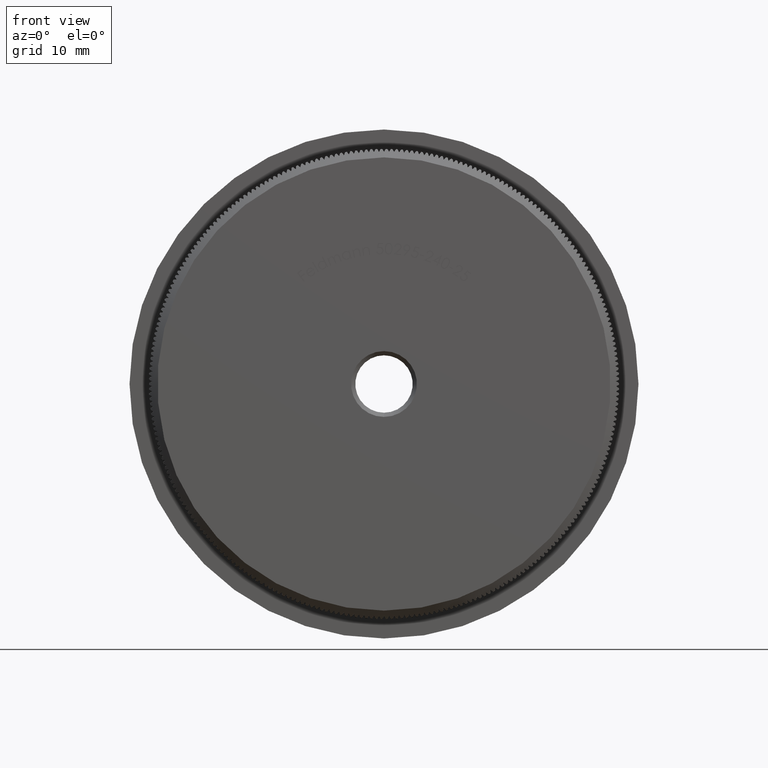
[diagram: clean part render]
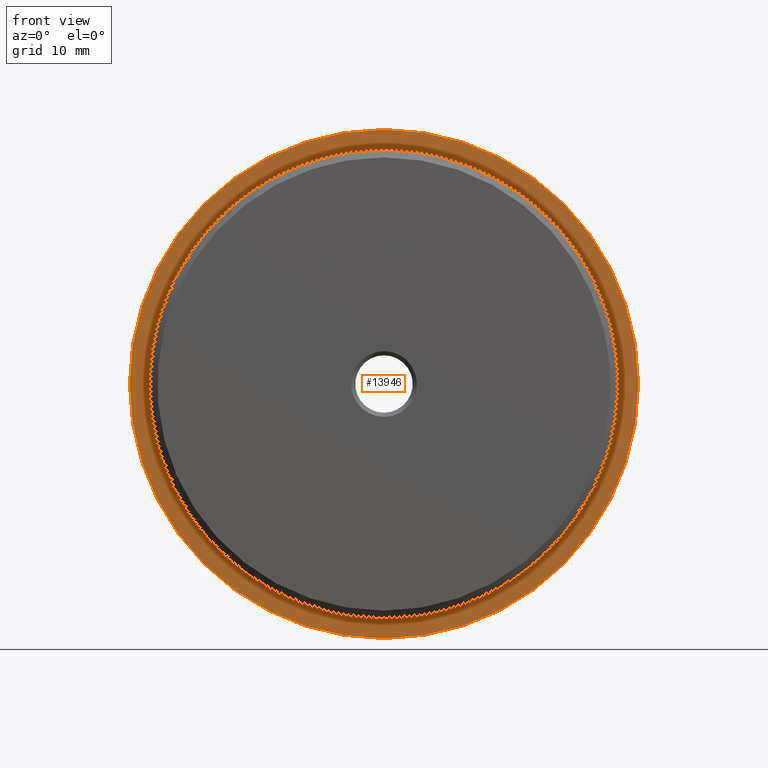
[diagram: same view with one face highlighted and labeled with its STEP entity id]
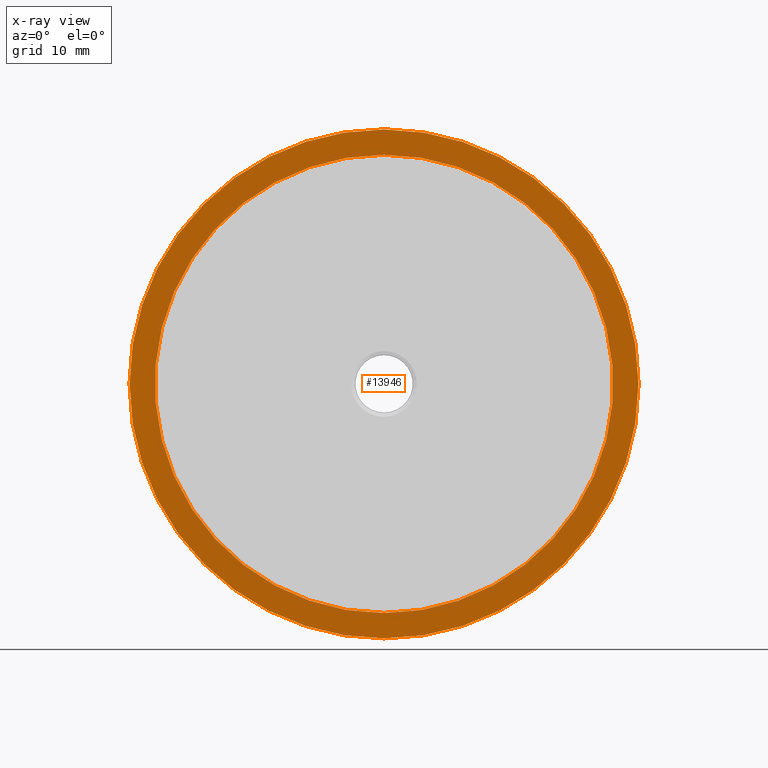
[diagram: x-ray of the same camera — body ghosted, the highlighted face saturated]
A machine part, front view. The second image highlights one B-rep face of the part: STEP entity #13946.
The next image is the same camera in x-ray: the body ghosted, the highlighted face saturated — about 0% of this face is hidden behind the body in this view.
In plain terms, the highlighted planar face has unit normal (0, -1, -0).
Its self-contained STEP definition (entity closure, byte-faithful):
#237 = CIRCLE ( 'NONE', #26784, 27.15000000000000200 ) ;
#1463 = CARTESIAN_POINT ( 'NONE',  ( 3.692310099429270400E-015, 8.000000000000000000, 30.14999999999999900 ) ) ;
#1512 = CARTESIAN_POINT ( 'NONE',  ( 0.0000000000000000000, 8.000000000000000000, 0.0000000000000000000 ) ) ;
#3095 = VERTEX_POINT ( 'NONE', #10664 ) ;
#4597 = CARTESIAN_POINT ( 'NONE',  ( 0.0000000000000000000, 8.000000000000000000, 0.0000000000000000000 ) ) ;
#4844 = CARTESIAN_POINT ( 'NONE',  ( 0.0000000000000000000, 8.000000000000000000, 0.0000000000000000000 ) ) ;
#7310 = VERTEX_POINT ( 'NONE', #37645 ) ;
#8578 = FACE_BOUND ( 'NONE', #19155, .T. ) ;
#8681 = CARTESIAN_POINT ( 'NONE',  ( 0.0000000000000000000, 8.000000000000000000, 0.0000000000000000000 ) ) ;
#9977 = AXIS2_PLACEMENT_3D ( 'NONE', #1512, #40428, #43528 ) ;
#10664 = CARTESIAN_POINT ( 'NONE',  ( 0.0000000000000000000, 8.000000000000000000, -30.14999999999999900 ) ) ;
#12691 = CIRCLE ( 'NONE', #17113, 30.14999999999999900 ) ;
#13946 = ADVANCED_FACE ( 'NONE', ( #41593, #8578 ), #16463, .T. ) ;
#14591 = EDGE_CURVE ( 'NONE', #7310, #17345, #237, .T. ) ;
#15259 = AXIS2_PLACEMENT_3D ( 'NONE', #27239, #30767, #41222 ) ;
#16463 = PLANE ( 'NONE',  #15259 ) ;
#17113 = AXIS2_PLACEMENT_3D ( 'NONE', #8681, #33299, #19440 ) ;
#17345 = VERTEX_POINT ( 'NONE', #18262 ) ;
#18262 = CARTESIAN_POINT ( 'NONE',  ( 0.0000000000000000000, 8.000000000000000000, -27.15000000000000200 ) ) ;
#19155 = EDGE_LOOP ( 'NONE', ( #23664, #24688 ) ) ;
#19440 = DIRECTION ( 'NONE',  ( 0.0000000000000000000, 0.0000000000000000000, -1.000000000000000000 ) ) ;
#20267 = AXIS2_PLACEMENT_3D ( 'NONE', #4844, #29635, #25635 ) ;
#20564 = EDGE_LOOP ( 'NONE', ( #38322, #34881 ) ) ;
#23260 = EDGE_CURVE ( 'NONE', #3095, #32266, #12691, .T. ) ;
#23322 = CIRCLE ( 'NONE', #9977, 27.15000000000000200 ) ;
#23664 = ORIENTED_EDGE ( 'NONE', *, *, #30491, .F. ) ;
#24688 = ORIENTED_EDGE ( 'NONE', *, *, #14591, .F. ) ;
#25635 = DIRECTION ( 'NONE',  ( 0.0000000000000000000, 0.0000000000000000000, -1.000000000000000000 ) ) ;
#26784 = AXIS2_PLACEMENT_3D ( 'NONE', #4597, #36454, #43830 ) ;
#27239 = CARTESIAN_POINT ( 'NONE',  ( 27.15000000000000200, 8.000000000000000000, 0.0000000000000000000 ) ) ;
#29635 = DIRECTION ( 'NONE',  ( -0.0000000000000000000, -1.000000000000000000, -0.0000000000000000000 ) ) ;
#30491 = EDGE_CURVE ( 'NONE', #17345, #7310, #23322, .T. ) ;
#30767 = DIRECTION ( 'NONE',  ( 0.0000000000000000000, -1.000000000000000000, -0.0000000000000000000 ) ) ;
#32266 = VERTEX_POINT ( 'NONE', #1463 ) ;
#33299 = DIRECTION ( 'NONE',  ( -0.0000000000000000000, -1.000000000000000000, -0.0000000000000000000 ) ) ;
#34881 = ORIENTED_EDGE ( 'NONE', *, *, #44425, .T. ) ;
#36454 = DIRECTION ( 'NONE',  ( -0.0000000000000000000, -1.000000000000000000, -0.0000000000000000000 ) ) ;
#37378 = CIRCLE ( 'NONE', #20267, 30.14999999999999900 ) ;
#37645 = CARTESIAN_POINT ( 'NONE',  ( 3.367778697655221700E-015, 8.000000000000000000, 27.15000000000000200 ) ) ;
#38322 = ORIENTED_EDGE ( 'NONE', *, *, #23260, .T. ) ;
#40428 = DIRECTION ( 'NONE',  ( -0.0000000000000000000, -1.000000000000000000, -0.0000000000000000000 ) ) ;
#41222 = DIRECTION ( 'NONE',  ( 0.0000000000000000000, 0.0000000000000000000, -1.000000000000000000 ) ) ;
#41593 = FACE_OUTER_BOUND ( 'NONE', #20564, .T. ) ;
#43528 = DIRECTION ( 'NONE',  ( 0.0000000000000000000, 0.0000000000000000000, -1.000000000000000000 ) ) ;
#43830 = DIRECTION ( 'NONE',  ( 0.0000000000000000000, 0.0000000000000000000, -1.000000000000000000 ) ) ;
#44425 = EDGE_CURVE ( 'NONE', #32266, #3095, #37378, .T. ) ;